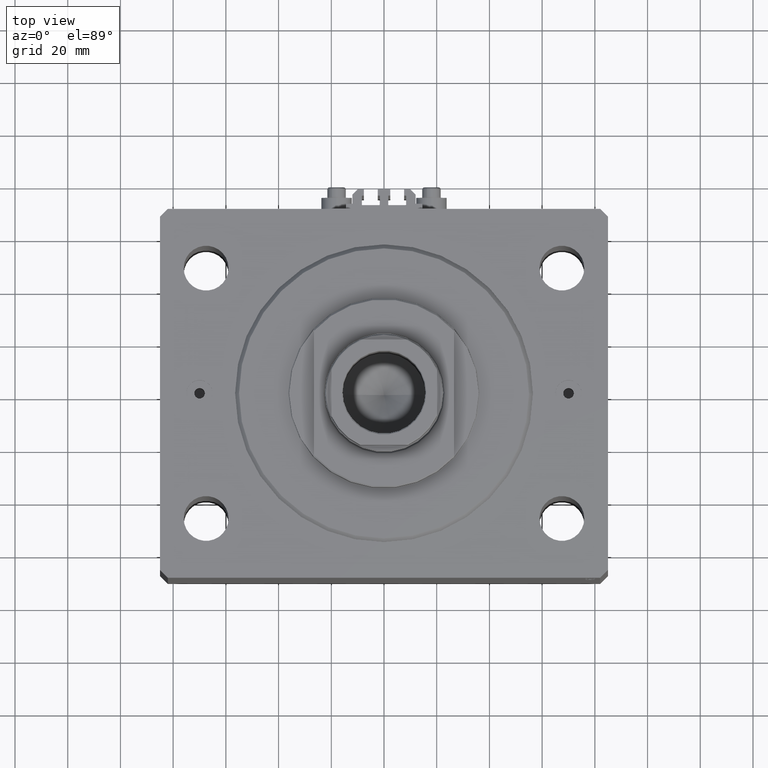
[diagram: clean part render]
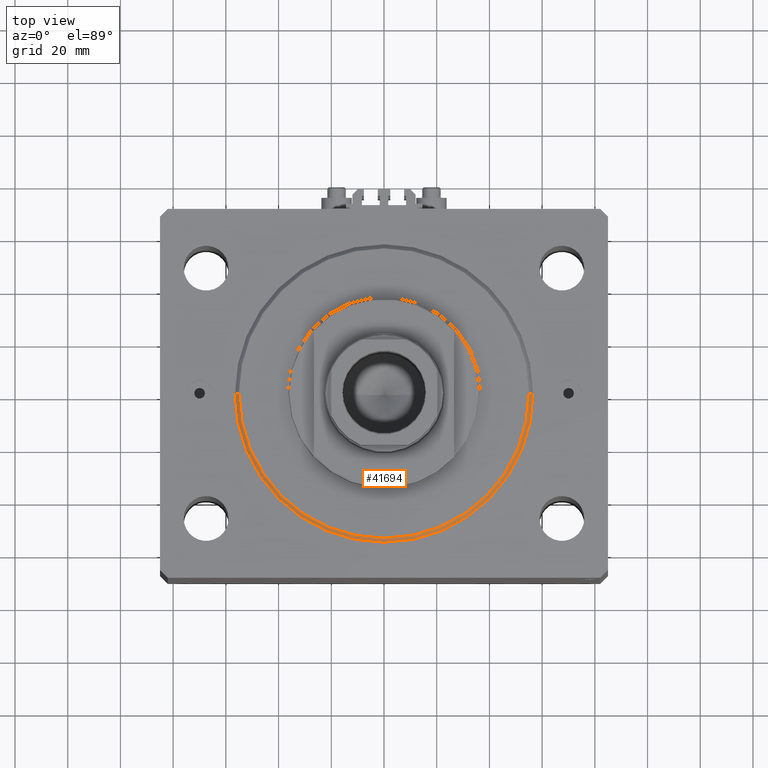
[diagram: same view with one face highlighted and labeled with its STEP entity id]
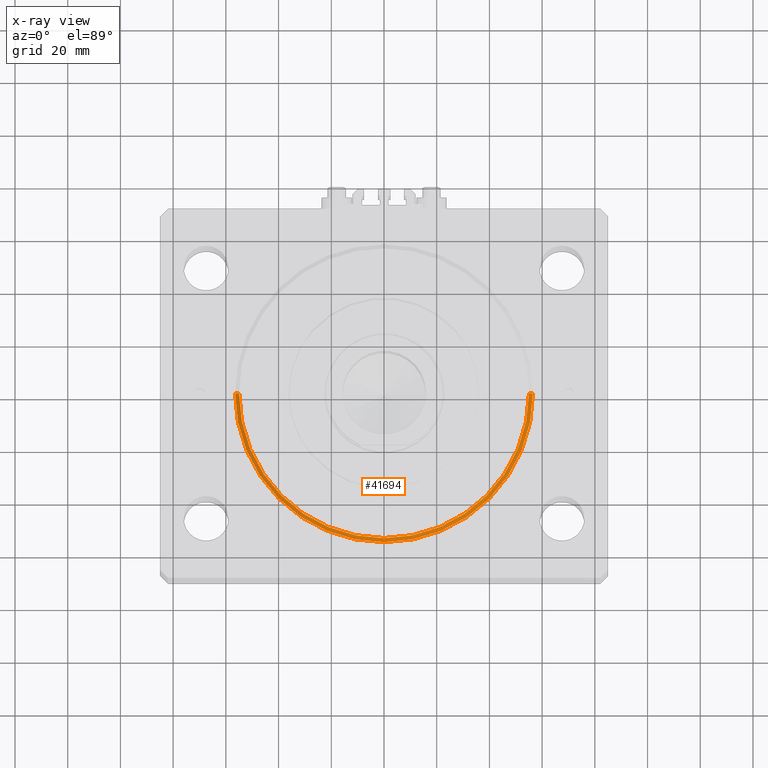
[diagram: x-ray of the same camera — body ghosted, the highlighted face saturated]
A machine part, top view. The second image highlights one B-rep face of the part: STEP entity #41694.
The next image is the same camera in x-ray: the body ghosted, the highlighted face saturated — about 0% of this face is hidden behind the body in this view.
In plain terms, the highlighted conical surface has half-angle 45 deg.
Its self-contained STEP definition (entity closure, byte-faithful):
#42 = CIRCLE ( 'NONE', #3865, 56.50000000000000711 ) ;
#1194 = EDGE_CURVE ( 'NONE', #39927, #3823, #31124, .T. ) ;
#1241 = DIRECTION ( 'NONE',  ( -0.000000000000000000, -0.000000000000000000, 1.000000000000000000 ) ) ;
#3139 = CARTESIAN_POINT ( 'NONE',  ( -56.50000000000000711, 0.000000000000000000, 1.499999999999994449 ) ) ;
#3823 = VERTEX_POINT ( 'NONE', #14968 ) ;
#3865 = AXIS2_PLACEMENT_3D ( 'NONE', #29840, #7663, #21744 ) ;
#4133 = DIRECTION ( 'NONE',  ( 1.000000000000000000, 0.000000000000000000, 0.000000000000000000 ) ) ;
#4884 = ORIENTED_EDGE ( 'NONE', *, *, #37179, .F. ) ;
#5426 = AXIS2_PLACEMENT_3D ( 'NONE', #43780, #1241, #4133 ) ;
#5508 = LINE ( 'NONE', #23645, #24982 ) ;
#7225 = EDGE_LOOP ( 'NONE', ( #18905, #38180, #25215, #4884 ) ) ;
#7663 = DIRECTION ( 'NONE',  ( -0.000000000000000000, -0.000000000000000000, 1.000000000000000000 ) ) ;
#7950 = FACE_OUTER_BOUND ( 'NONE', #7225, .T. ) ;
#9740 = AXIS2_PLACEMENT_3D ( 'NONE', #31636, #35676, #10137 ) ;
#9951 = VECTOR ( 'NONE', #44296, 1000.000000000000000 ) ;
#10137 = DIRECTION ( 'NONE',  ( 1.000000000000000000, 0.000000000000000000, 0.000000000000000000 ) ) ;
#10249 = VERTEX_POINT ( 'NONE', #30249 ) ;
#11621 = EDGE_CURVE ( 'NONE', #3823, #19769, #29490, .T. ) ;
#14533 = CONICAL_SURFACE ( 'NONE', #5426, 56.50000000000000711, 0.7853981633974460586 ) ;
#14968 = CARTESIAN_POINT ( 'NONE',  ( -55.00000000000002132, 6.827405905246496343E-15, 0.000000000000000000 ) ) ;
#18905 = ORIENTED_EDGE ( 'NONE', *, *, #11621, .F. ) ;
#19769 = VERTEX_POINT ( 'NONE', #3139 ) ;
#20302 = DIRECTION ( 'NONE',  ( 0.7071067811865459074, 0.000000000000000000, 0.7071067811865491270 ) ) ;
#21744 = DIRECTION ( 'NONE',  ( 1.000000000000000000, 0.000000000000000000, 0.000000000000000000 ) ) ;
#22700 = EDGE_CURVE ( 'NONE', #39927, #10249, #5508, .T. ) ;
#23645 = CARTESIAN_POINT ( 'NONE',  ( 56.50000000000000711, 0.000000000000000000, 1.499999999999994449 ) ) ;
#24982 = VECTOR ( 'NONE', #20302, 1000.000000000000000 ) ;
#25215 = ORIENTED_EDGE ( 'NONE', *, *, #22700, .T. ) ;
#29490 = LINE ( 'NONE', #44058, #9951 ) ;
#29840 = CARTESIAN_POINT ( 'NONE',  ( 0.000000000000000000, 0.000000000000000000, 1.499999999999994449 ) ) ;
#30249 = CARTESIAN_POINT ( 'NONE',  ( 56.50000000000000711, 6.919254415182546126E-15, 1.499999999999994449 ) ) ;
#31124 = CIRCLE ( 'NONE', #9740, 55.00000000000002132 ) ;
#31636 = CARTESIAN_POINT ( 'NONE',  ( 0.000000000000000000, 0.000000000000000000, 0.000000000000000000 ) ) ;
#34612 = CARTESIAN_POINT ( 'NONE',  ( 55.00000000000002132, 0.000000000000000000, 0.000000000000000000 ) ) ;
#35676 = DIRECTION ( 'NONE',  ( -0.000000000000000000, -0.000000000000000000, -1.000000000000000000 ) ) ;
#37179 = EDGE_CURVE ( 'NONE', #19769, #10249, #42, .T. ) ;
#38180 = ORIENTED_EDGE ( 'NONE', *, *, #1194, .F. ) ;
#39927 = VERTEX_POINT ( 'NONE', #34612 ) ;
#41694 = ADVANCED_FACE ( 'NONE', ( #7950 ), #14533, .T. ) ;
#43780 = CARTESIAN_POINT ( 'NONE',  ( 0.000000000000000000, 0.000000000000000000, 1.499999999999994449 ) ) ;
#44058 = CARTESIAN_POINT ( 'NONE',  ( -56.50000000000000711, 6.919254415182546126E-15, 1.499999999999994449 ) ) ;
#44296 = DIRECTION ( 'NONE',  ( -0.7071067811865459074, 8.659560562354911904E-17, 0.7071067811865491270 ) ) ;